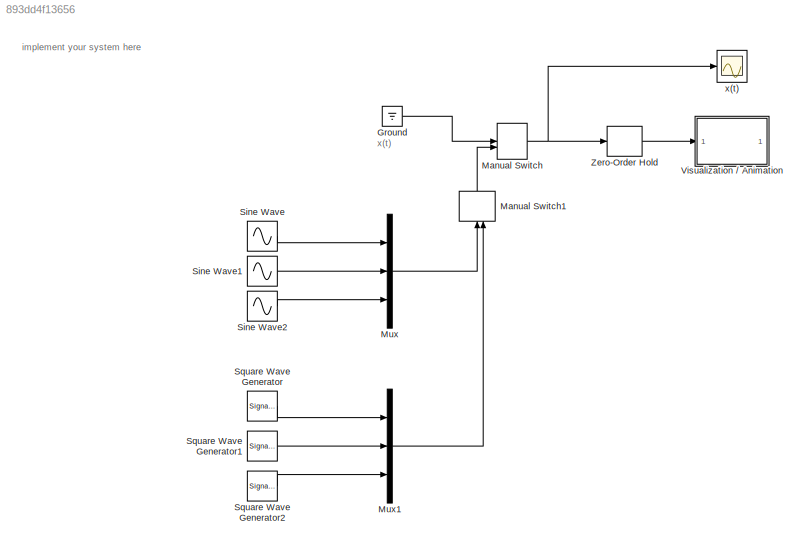
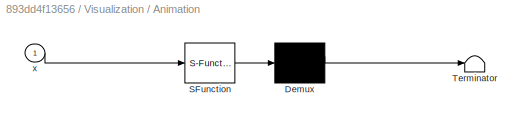
MODEL slx_893dd4f13656
KIND model
CONFIG AbsTol = 1e-6
CONFIG EnableMultiTasking = off
CONFIG FixedStep = 1e-2
CONFIG MaxStep = auto
CONFIG MinStep = auto
CONFIG RelTol = 1e-3
CONFIG SampleTimeConstraint = Unconstrained
CONFIG SolverName = ode4
CONFIG StartTime = 0
CONFIG StopTime = 10
BLOCK [Ground] Ground
BLOCK [ManualSwitch] Manual Switch
  CurrentSetting = 0
BLOCK [ManualSwitch] Manual Switch1
  CurrentSetting = 0
  NameLocation = right
BLOCK [Mux] Mux
  DisplayOption = bar
  Inputs = 3
BLOCK [Mux] Mux1
  DisplayOption = bar
  Inputs = 3
BLOCK [Sin] Sine Wave
  Amplitude = 2
  Bias = 1
  SampleTime = 0
BLOCK [Sin] Sine Wave1
  Amplitude = 2
  Bias = 3
  SampleTime = 0
BLOCK [Sin] Sine Wave2
  Amplitude = pi/4
  SampleTime = 0
BLOCK [SignalGenerator] Square Wave Generator
  Units = rad/sec
  WaveForm = square
BLOCK [SignalGenerator] Square Wave Generator1
  Units = rad/sec
  WaveForm = square
BLOCK [SignalGenerator] Square Wave Generator2
  Units = rad/sec
  WaveForm = square
BLOCK [SubSystem] Visualization // Animation
  ErrorFcn = Stateflow.Translate.translate
  PermitHierarchicalResolution = ExplicitOnly
  SFBlockType = MATLAB Function
  TreatAsAtomicUnit = on
BLOCK [Demux] Visualization // Animation/ Demux 
  Outputs = 1
BLOCK [S-Function] Visualization // Animation/ SFunction 
  EnableBusSupport = on
  FunctionName = sf_sfun
  PortCounts = [1 1]
  SFcnIsStateOwnerBlock = off
  SFunctionDeploymentMode = off
  Tag = Stateflow S-Function 1
BLOCK [Terminator] Visualization // Animation/ Terminator 
BLOCK [Inport] Visualization // Animation/x
BLOCK [ZeroOrderHold] Zero-Order Hold
  SampleTime = 0.1
BLOCK [Scope] x(t)
  Floating = off
  NumInputPorts = 1
  ScopeSpecificationString = Simulink.scopes.TimeScopeBlockCfg('CurrentConfiguration', extmgr.ConfigurationSet(extmgr.Configuration('Core','General UI',true),extmgr.Configuration('Core','Source UI',true),extmgr.Configuration('Sources','WiredSimulink',true,'DataLoggingVariableName','ScopeData1'),extmgr.Configuration('Visuals','Time Domain',true,'SerializedDisplays',{struct('MinYLimReal','-1.25','MaxYLimReal','1.25','YLabelReal...<+1421ch>
ANNOTATION (root): implement your system here
ANNOTATION (root): x(t)
LINE Ground:1 -> Manual Switch:1
LINE Manual Switch1:1 -> Manual Switch:2
NET Manual Switch:1 -> Zero-Order Hold:1, x(t):1
LINE Mux1:1 -> Manual Switch1:2
LINE Mux:1 -> Manual Switch1:1
LINE Sine Wave1:1 -> Mux:2
LINE Sine Wave2:1 -> Mux:3
LINE Sine Wave:1 -> Mux:1
LINE Square Wave Generator1:1 -> Mux1:2
LINE Square Wave Generator2:1 -> Mux1:3
LINE Square Wave Generator:1 -> Mux1:1
LINE Zero-Order Hold:1 -> Visualization // Animation:1
note: NET lines group one-source signal fan-out (src -> all destinations, sorted); 1:1 wires keep LINE
CHART Visualization // Animation states=1 transitions=1
  STATE_LABEL 'eML_blk_kernel()'
  STATE_LABEL 'SCRIPT:\nfunction fcn(x)\n\n\n% body\n    Ybody = [ -0.2 ; -0.2 ; 0.2 ; 0.2 ];\n    Xbody = [ -0.15 ; 0.15 ; 0.15 ; -0.15 ]; \n\n% front\n    Yfront = [ -0.2 ; -0.1 ; 0.1 ; 0.2 ];\n    Xfront = [ 0.15 ; 0.2 ; 0.2 ; 0.15 ];\n    \n% wheel model\n    Yw = [ -0.02 ; -0.02 ; 0.02 ; 0.02 ];\n    Xw = [ -0.13 ; 0.13 ; 0.13 ; -0.13 ];\n    \n% left wheel\n    Ywl = Yw + 0.21;\n    Xwl = Xw;\n    \n% right wheel    \n    Ywr ...<+1387ch>'
CHART  states=0 transitions=0
